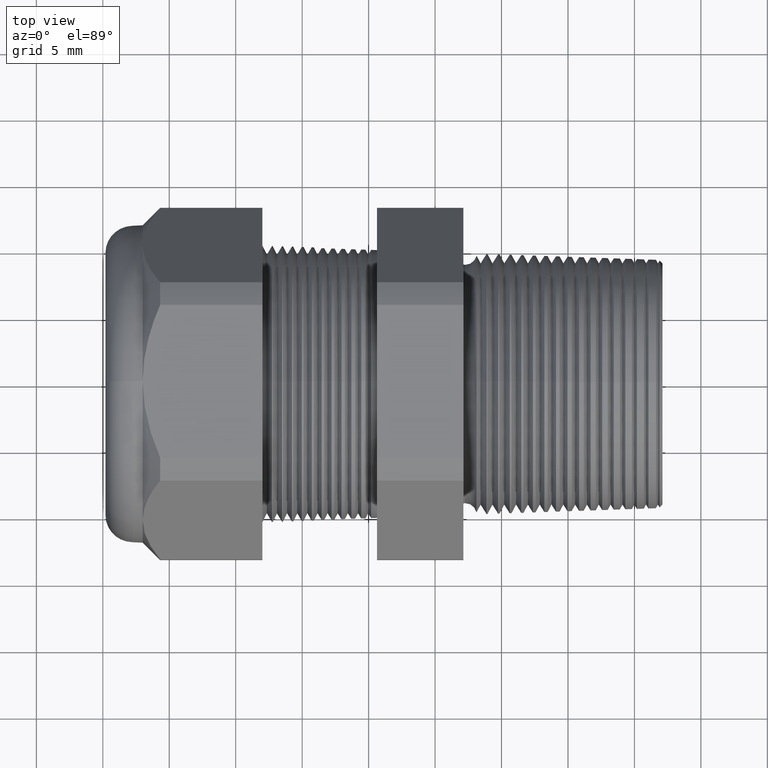
[diagram: clean part render]
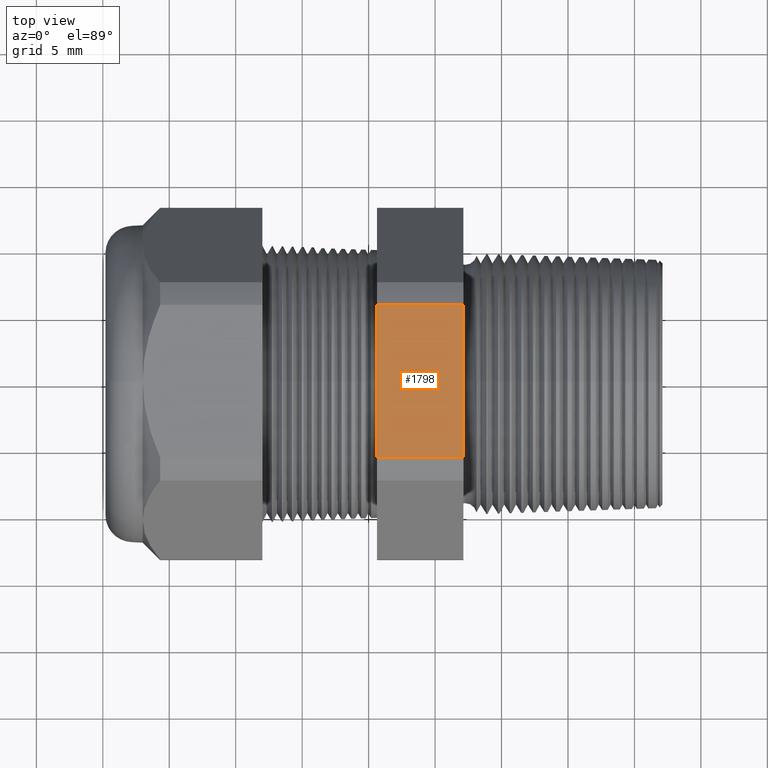
[diagram: same view with one face highlighted and labeled with its STEP entity id]
A machine part, top view. The second image highlights one B-rep face of the part: STEP entity #1798.
In plain terms, the highlighted planar face has unit normal (0, 0, 1).
Its self-contained STEP definition (entity closure, byte-faithful):
#837 = EDGE_CURVE ( 'NONE', #1701, #1759, #3504, .T. ) ;
#1646 = VERTEX_POINT ( 'NONE', #5083 ) ;
#1700 = EDGE_CURVE ( 'NONE', #1646, #1701, #5166, .T. ) ;
#1701 = VERTEX_POINT ( 'NONE', #5162 ) ;
#1759 = VERTEX_POINT ( 'NONE', #5263 ) ;
#1761 = EDGE_CURVE ( 'NONE', #1759, #1762, #5262, .T. ) ;
#1762 = VERTEX_POINT ( 'NONE', #5258 ) ;
#1796 = EDGE_CURVE ( 'NONE', #1646, #1762, #5333, .T. ) ;
#1798 = ADVANCED_FACE ( 'NONE', ( #5329 ), #5328, .T. ) ;
#1799 = EDGE_LOOP ( 'NONE', ( #1800, #1801, #1802, #1857 ) ) ;
#1800 = ORIENTED_EDGE ( 'NONE', *, *, #1796, .T. ) ;
#1801 = ORIENTED_EDGE ( 'NONE', *, *, #1761, .F. ) ;
#1802 = ORIENTED_EDGE ( 'NONE', *, *, #837, .F. ) ;
#1857 = ORIENTED_EDGE ( 'NONE', *, *, #1700, .F. ) ;
#3496 = DIRECTION ( 'NONE',  ( -1.000000000000000000, 0.0000000000000000000, 0.0000000000000000000 ) ) ;
#3497 = VECTOR ( 'NONE', #3496, 39.37007874015748100 ) ;
#3498 = CARTESIAN_POINT ( 'NONE',  ( 0.2800000000000000300, -0.2264307620443835600, 0.4699999999999997500 ) ) ;
#3504 = LINE ( 'NONE', #3498, #3497 ) ;
#5083 = CARTESIAN_POINT ( 'NONE',  ( -0.3100000000000000000, 0.2264307620443832800, 0.4699999999999999200 ) ) ;
#5162 = CARTESIAN_POINT ( 'NONE',  ( -0.3100000000000000000, -0.2264307620443835600, 0.4699999999999997500 ) ) ;
#5163 = DIRECTION ( 'NONE',  ( 0.0000000000000000000, -1.000000000000000000, 0.0000000000000000000 ) ) ;
#5164 = VECTOR ( 'NONE', #5163, 39.37007874015748100 ) ;
#5165 = CARTESIAN_POINT ( 'NONE',  ( -0.3100000000000000000, 0.9399999999999999500, 0.4699999999999999200 ) ) ;
#5166 = LINE ( 'NONE', #5165, #5164 ) ;
#5258 = CARTESIAN_POINT ( 'NONE',  ( -0.5659055118110235500, 0.2264307620443832800, 0.4699999999999999200 ) ) ;
#5259 = DIRECTION ( 'NONE',  ( 0.0000000000000000000, 1.000000000000000000, 0.0000000000000000000 ) ) ;
#5260 = VECTOR ( 'NONE', #5259, 39.37007874015748100 ) ;
#5261 = CARTESIAN_POINT ( 'NONE',  ( -0.5659055118110235500, 0.9399999999999998400, 0.4699999999999999200 ) ) ;
#5262 = LINE ( 'NONE', #5261, #5260 ) ;
#5263 = CARTESIAN_POINT ( 'NONE',  ( -0.5659055118110235500, -0.2264307620443835600, 0.4699999999999997500 ) ) ;
#5324 = DIRECTION ( 'NONE',  ( 1.000000000000000000, 0.0000000000000000000, 0.0000000000000000000 ) ) ;
#5325 = DIRECTION ( 'NONE',  ( 0.0000000000000000000, 0.0000000000000000000, 1.000000000000000000 ) ) ;
#5326 = CARTESIAN_POINT ( 'NONE',  ( 0.2800000000000000300, -0.2264307620443832800, 0.4699999999999999200 ) ) ;
#5327 = AXIS2_PLACEMENT_3D ( 'NONE', #5326, #5325, #5324 ) ;
#5328 = PLANE ( 'NONE',  #5327 ) ;
#5329 = FACE_OUTER_BOUND ( 'NONE', #1799, .T. ) ;
#5330 = DIRECTION ( 'NONE',  ( -1.000000000000000000, 0.0000000000000000000, 0.0000000000000000000 ) ) ;
#5331 = VECTOR ( 'NONE', #5330, 39.37007874015748100 ) ;
#5332 = CARTESIAN_POINT ( 'NONE',  ( 0.2800000000000000300, 0.2264307620443832800, 0.4699999999999999200 ) ) ;
#5333 = LINE ( 'NONE', #5332, #5331 ) ;